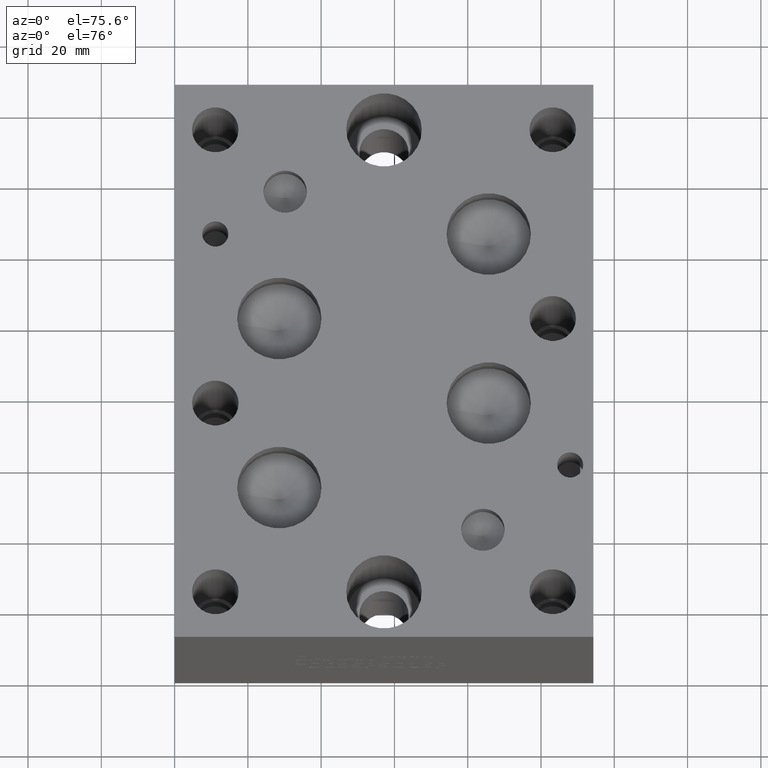
[diagram: clean part render]
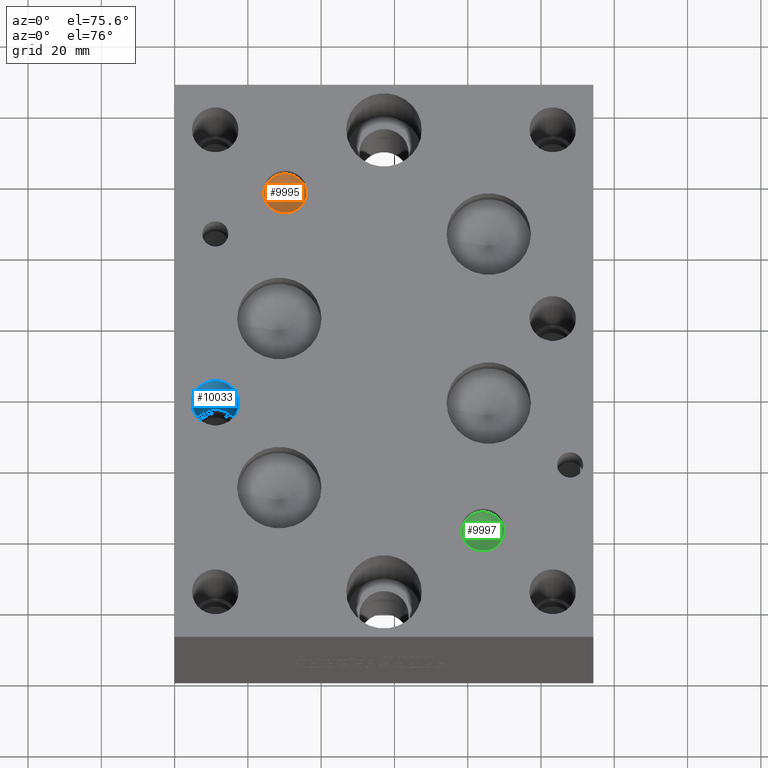
[diagram: same view with three faces highlighted in distinct colors, each labeled with its STEP entity id]
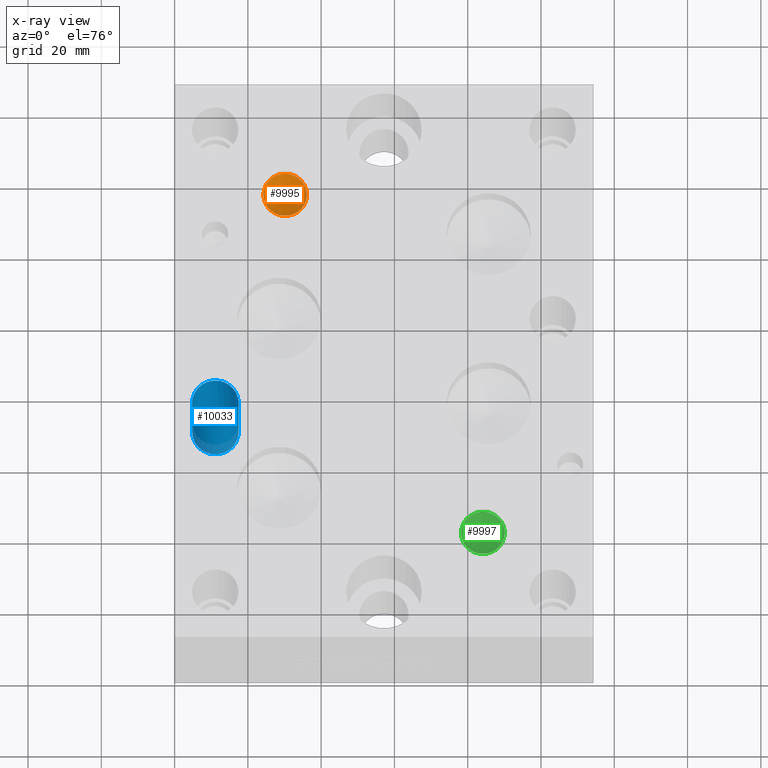
[diagram: x-ray of the same camera — body ghosted, the three highlighted faces saturated]
A machine part, auxiliary view with three faces highlighted in distinct colors.
The next image is the same camera in x-ray (body ghosted, the three faces saturated) — at least one of them is partly hidden behind the body in this view.
Their STEP definitions:

[orange] entity #9995 — the highlighted conical surface has half-angle 60 deg.
#56=CONICAL_SURFACE('',#10423,2.9718,1.0471975511966);
#124=CIRCLE('',#10424,5.9436);
#125=CIRCLE('',#10425,5.9436);
#1046=FACE_OUTER_BOUND('',#1612,.T.);
#1612=EDGE_LOOP('',(#8711,#8712,#8713,#8714));
#2594=LINE('',#17027,#3542);
#3542=VECTOR('',#12197,2.9718);
#4736=VERTEX_POINT('',#17023);
#4737=VERTEX_POINT('',#17024);
#4738=VERTEX_POINT('',#17026);
#6092=EDGE_CURVE('',#4736,#4737,#124,.T.);
#6093=EDGE_CURVE('',#4737,#4738,#2594,.T.);
#6094=EDGE_CURVE('',#4737,#4736,#125,.T.);
#8711=ORIENTED_EDGE('',*,*,#6092,.T.);
#8712=ORIENTED_EDGE('',*,*,#6093,.T.);
#8713=ORIENTED_EDGE('',*,*,#6093,.F.);
#8714=ORIENTED_EDGE('',*,*,#6094,.T.);
#9995=ADVANCED_FACE('',(#1046),#56,.F.);
#10423=AXIS2_PLACEMENT_3D('',#17022,#12193,#12194);
#10424=AXIS2_PLACEMENT_3D('',#17025,#12195,#12196);
#10425=AXIS2_PLACEMENT_3D('',#17028,#12198,#12199);
#12193=DIRECTION('center_axis',(0.,0.,1.));
#12194=DIRECTION('ref_axis',(1.,0.,0.));
#12195=DIRECTION('center_axis',(0.,0.,1.));
#12196=DIRECTION('ref_axis',(1.,0.,0.));
#12197=DIRECTION('',(0.866025403784439,1.06057523872491E-16,-0.5));
#12198=DIRECTION('center_axis',(0.,0.,1.));
#12199=DIRECTION('ref_axis',(1.,0.,0.));
#17022=CARTESIAN_POINT('Origin',(30.1625,125.42012,45.6526904700223));
#17023=CARTESIAN_POINT('',(36.1061,125.42012,47.36846));
#17024=CARTESIAN_POINT('',(24.2189,125.42012,47.36846));
#17025=CARTESIAN_POINT('Origin',(30.1625,125.42012,47.36846));
#17026=CARTESIAN_POINT('',(30.1625,125.42012,43.9369209400445));
#17027=CARTESIAN_POINT('',(27.1907,125.42012,45.6526904700223));
#17028=CARTESIAN_POINT('Origin',(30.1625,125.42012,47.36846));

[blue] entity #10033 — the highlighted cylindrical surface (bore or boss wall) has radius 6.35 mm, axis along (0, 0, 1).
#48=CYLINDRICAL_SURFACE('',#10533,6.35);
#193=CIRCLE('',#10530,6.35);
#194=CIRCLE('',#10531,6.35);
#196=CIRCLE('',#10534,6.35);
#197=CIRCLE('',#10535,6.35);
#1084=FACE_OUTER_BOUND('',#1656,.T.);
#1656=EDGE_LOOP('',(#8888,#8889,#8890,#8891,#8892,#8893));
#2626=LINE('',#17255,#3574);
#3574=VECTOR('',#12451,6.35);
#4819=VERTEX_POINT('',#17244);
#4820=VERTEX_POINT('',#17245);
#4822=VERTEX_POINT('',#17251);
#4823=VERTEX_POINT('',#17252);
#6193=EDGE_CURVE('',#4819,#4820,#193,.T.);
#6194=EDGE_CURVE('',#4820,#4819,#194,.T.);
#6196=EDGE_CURVE('',#4822,#4823,#196,.T.);
#6197=EDGE_CURVE('',#4823,#4822,#197,.T.);
#6198=EDGE_CURVE('',#4823,#4820,#2626,.T.);
#8888=ORIENTED_EDGE('',*,*,#6196,.F.);
#8889=ORIENTED_EDGE('',*,*,#6197,.F.);
#8890=ORIENTED_EDGE('',*,*,#6198,.T.);
#8891=ORIENTED_EDGE('',*,*,#6193,.F.);
#8892=ORIENTED_EDGE('',*,*,#6194,.F.);
#8893=ORIENTED_EDGE('',*,*,#6198,.F.);
#10033=ADVANCED_FACE('',(#1084),#48,.F.);
#10530=AXIS2_PLACEMENT_3D('',#17246,#12439,#12440);
#10531=AXIS2_PLACEMENT_3D('',#17247,#12441,#12442);
#10533=AXIS2_PLACEMENT_3D('',#17250,#12445,#12446);
#10534=AXIS2_PLACEMENT_3D('',#17253,#12447,#12448);
#10535=AXIS2_PLACEMENT_3D('',#17254,#12449,#12450);
#12439=DIRECTION('center_axis',(0.,0.,1.));
#12440=DIRECTION('ref_axis',(1.,0.,0.));
#12441=DIRECTION('center_axis',(0.,0.,1.));
#12442=DIRECTION('ref_axis',(1.,0.,0.));
#12445=DIRECTION('center_axis',(0.,0.,1.));
#12446=DIRECTION('ref_axis',(1.,0.,0.));
#12447=DIRECTION('center_axis',(0.,0.,-1.));
#12448=DIRECTION('ref_axis',(1.,0.,0.));
#12449=DIRECTION('center_axis',(0.,0.,-1.));
#12450=DIRECTION('ref_axis',(1.,0.,0.));
#12451=DIRECTION('',(0.,0.,-1.));
#17244=CARTESIAN_POINT('',(17.4752,65.8876,19.05));
#17245=CARTESIAN_POINT('',(4.7752,65.8876,19.05));
#17246=CARTESIAN_POINT('Origin',(11.1252,65.8876,19.05));
#17247=CARTESIAN_POINT('Origin',(11.1252,65.8876,19.05));
#17250=CARTESIAN_POINT('Origin',(11.1252,65.8876,34.925));
#17251=CARTESIAN_POINT('',(17.4752,65.8876,50.8));
#17252=CARTESIAN_POINT('',(4.7752,65.8876,50.8));
#17253=CARTESIAN_POINT('Origin',(11.1252,65.8876,50.8));
#17254=CARTESIAN_POINT('Origin',(11.1252,65.8876,50.8));
#17255=CARTESIAN_POINT('',(4.7752,65.8876,34.925));

[green] entity #9997 — the highlighted conical surface has half-angle 60 deg.
#57=CONICAL_SURFACE('',#10429,2.9718,1.0471975511966);
#128=CIRCLE('',#10430,5.9436);
#129=CIRCLE('',#10431,5.9436);
#1048=FACE_OUTER_BOUND('',#1614,.T.);
#1614=EDGE_LOOP('',(#8721,#8722,#8723,#8724));
#2596=LINE('',#17040,#3544);
#3544=VECTOR('',#12211,2.9718);
#4741=VERTEX_POINT('',#17036);
#4742=VERTEX_POINT('',#17037);
#4743=VERTEX_POINT('',#17039);
#6098=EDGE_CURVE('',#4741,#4742,#128,.T.);
#6099=EDGE_CURVE('',#4742,#4743,#2596,.T.);
#6100=EDGE_CURVE('',#4742,#4741,#129,.T.);
#8721=ORIENTED_EDGE('',*,*,#6098,.T.);
#8722=ORIENTED_EDGE('',*,*,#6099,.T.);
#8723=ORIENTED_EDGE('',*,*,#6099,.F.);
#8724=ORIENTED_EDGE('',*,*,#6100,.T.);
#9997=ADVANCED_FACE('',(#1048),#57,.F.);
#10429=AXIS2_PLACEMENT_3D('',#17035,#12207,#12208);
#10430=AXIS2_PLACEMENT_3D('',#17038,#12209,#12210);
#10431=AXIS2_PLACEMENT_3D('',#17041,#12212,#12213);
#12207=DIRECTION('center_axis',(0.,0.,1.));
#12208=DIRECTION('ref_axis',(1.,0.,0.));
#12209=DIRECTION('center_axis',(0.,0.,1.));
#12210=DIRECTION('ref_axis',(1.,0.,0.));
#12211=DIRECTION('',(0.866025403784439,1.06057523872491E-16,-0.5));
#12212=DIRECTION('center_axis',(0.,0.,1.));
#12213=DIRECTION('ref_axis',(1.,0.,0.));
#17035=CARTESIAN_POINT('Origin',(84.1375,30.17012,45.6526904700223));
#17036=CARTESIAN_POINT('',(90.0811,30.17012,47.36846));
#17037=CARTESIAN_POINT('',(78.1939,30.17012,47.36846));
#17038=CARTESIAN_POINT('Origin',(84.1375,30.17012,47.36846));
#17039=CARTESIAN_POINT('',(84.1375,30.17012,43.9369209400445));
#17040=CARTESIAN_POINT('',(81.1657,30.17012,45.6526904700223));
#17041=CARTESIAN_POINT('Origin',(84.1375,30.17012,47.36846));